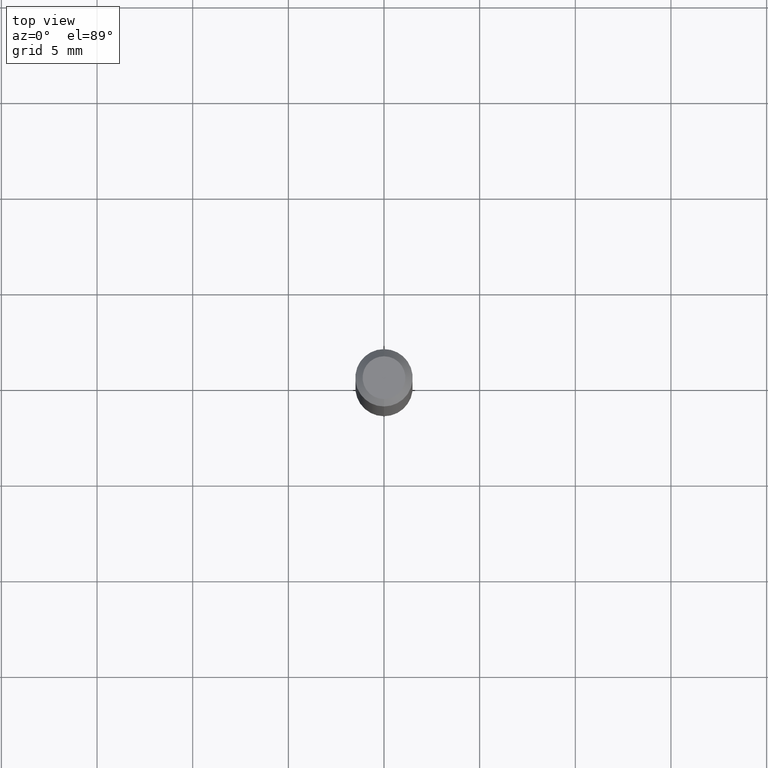
[diagram: clean part render]
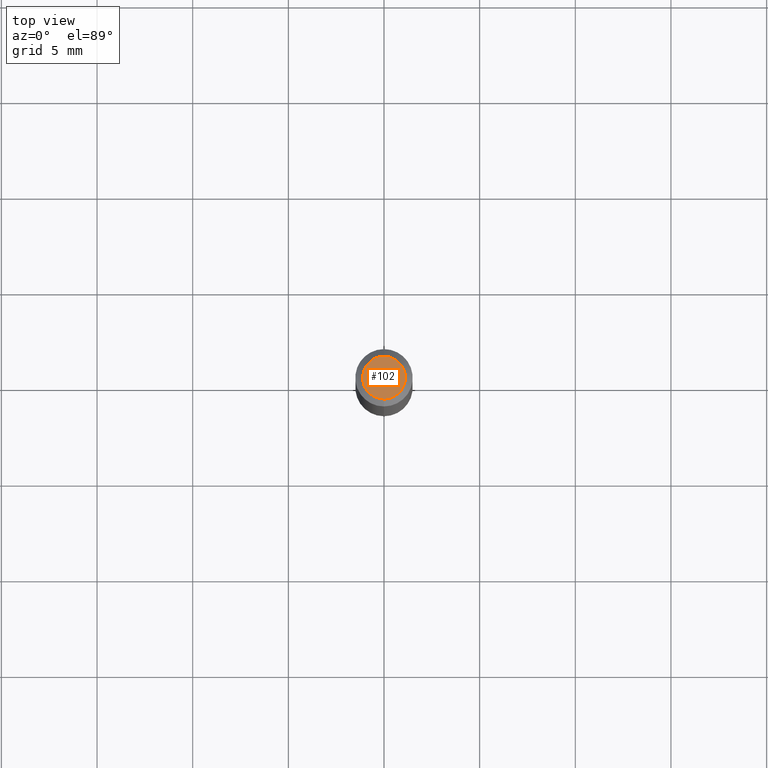
[diagram: same view with one face highlighted and labeled with its STEP entity id]
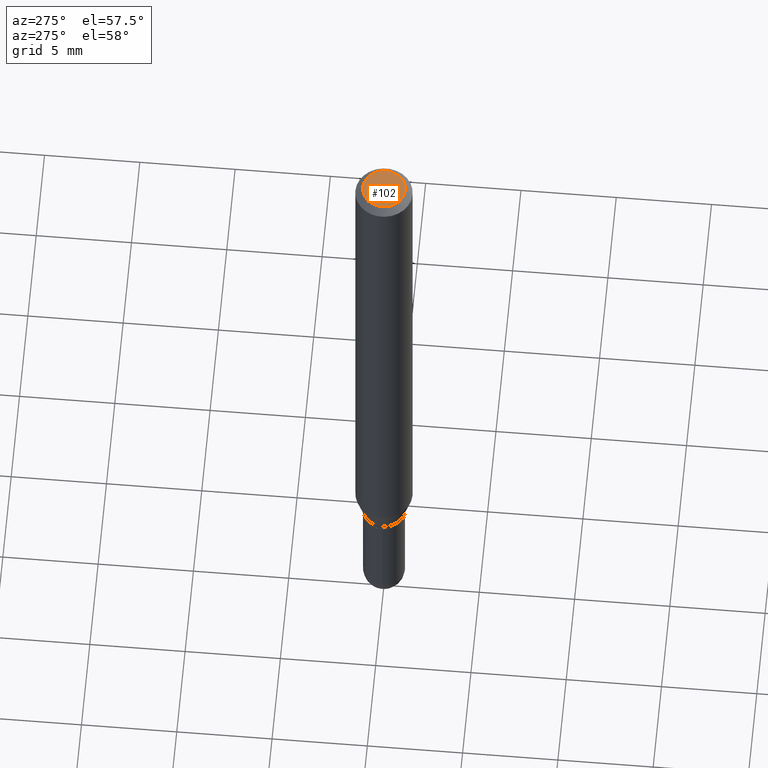
[diagram: same view with one face highlighted and labeled with its STEP entity id]
A machine part, top view. The second image highlights one B-rep face of the part: STEP entity #102.
A second angle (auxiliary view) of the same face is appended — the face is thin or edge-on in the first view.
In plain terms, the highlighted planar face has unit normal (0, -0, -1).
Its self-contained STEP definition (entity closure, byte-faithful):
#32 = AXIS2_PLACEMENT_3D ( 'NONE', #474, #129, #275 ) ;
#36 = AXIS2_PLACEMENT_3D ( 'NONE', #177, #329, #94 ) ;
#50 = AXIS2_PLACEMENT_3D ( 'NONE', #456, #255, #220 ) ;
#60 = ORIENTED_EDGE ( 'NONE', *, *, #334, .T. ) ;
#63 = EDGE_LOOP ( 'NONE', ( #409, #60 ) ) ;
#94 = DIRECTION ( 'NONE',  ( -6.982962677686265133E-15, -1.000000000000000000, 3.491546540293743736E-15 ) ) ;
#102 = ADVANCED_FACE ( 'NONE', ( #300 ), #496, .F. ) ;
#129 = DIRECTION ( 'NONE',  ( -2.445423276255530617E-29, 3.491546540293744130E-15, 1.000000000000000000 ) ) ;
#177 = CARTESIAN_POINT ( 'NONE',  ( 2.241522435601996045E-45, -3.200419322498977883E-31, -9.166194079228073088E-17 ) ) ;
#220 = DIRECTION ( 'NONE',  ( 6.982962677686265922E-15, 1.000000000000000000, -3.491546540293744525E-15 ) ) ;
#252 = VERTEX_POINT ( 'NONE', #257 ) ;
#255 = DIRECTION ( 'NONE',  ( 2.445423276255530056E-29, -3.491546540293744525E-15, -1.000000000000000000 ) ) ;
#257 = CARTESIAN_POINT ( 'NONE',  ( -3.536586717851222218E-16, -0.04404999999999999888, 6.214068430765867686E-17 ) ) ;
#275 = DIRECTION ( 'NONE',  ( -6.982962677686265133E-15, -1.000000000000000000, 3.491546540293743736E-15 ) ) ;
#300 = FACE_OUTER_BOUND ( 'NONE', #63, .T. ) ;
#312 = EDGE_CURVE ( 'NONE', #490, #252, #336, .T. ) ;
#325 = CIRCLE ( 'NONE', #36, 0.04404999999999999888 ) ;
#329 = DIRECTION ( 'NONE',  ( -2.445423276255530617E-29, 3.491546540293744130E-15, 1.000000000000000000 ) ) ;
#334 = EDGE_CURVE ( 'NONE', #252, #490, #325, .T. ) ;
#336 = CIRCLE ( 'NONE', #32, 0.04404999999999999888 ) ;
#409 = ORIENTED_EDGE ( 'NONE', *, *, #312, .T. ) ;
#444 = CARTESIAN_POINT ( 'NONE',  ( 3.599717260347271507E-16, 0.04404999999999999888, -2.454645658922200893E-16 ) ) ;
#456 = CARTESIAN_POINT ( 'NONE',  ( 3.075995059520799729E-16, 0.04404999999999999888, -1.996335954960797855E-16 ) ) ;
#474 = CARTESIAN_POINT ( 'NONE',  ( 2.241522435601996045E-45, -3.200419322498977883E-31, -9.166194079228073088E-17 ) ) ;
#490 = VERTEX_POINT ( 'NONE', #444 ) ;
#496 = PLANE ( 'NONE',  #50 ) ;